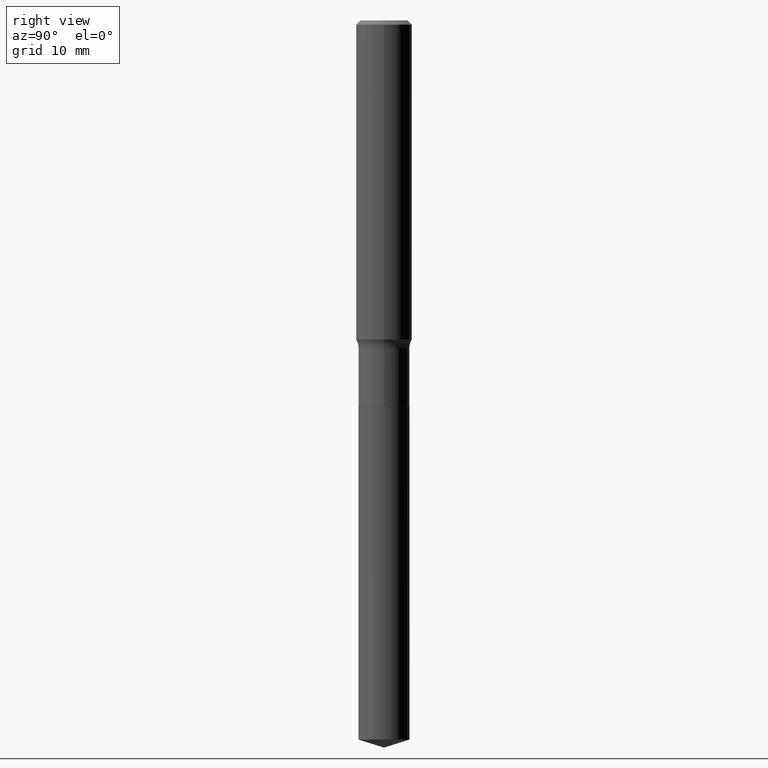
[diagram: clean part render]
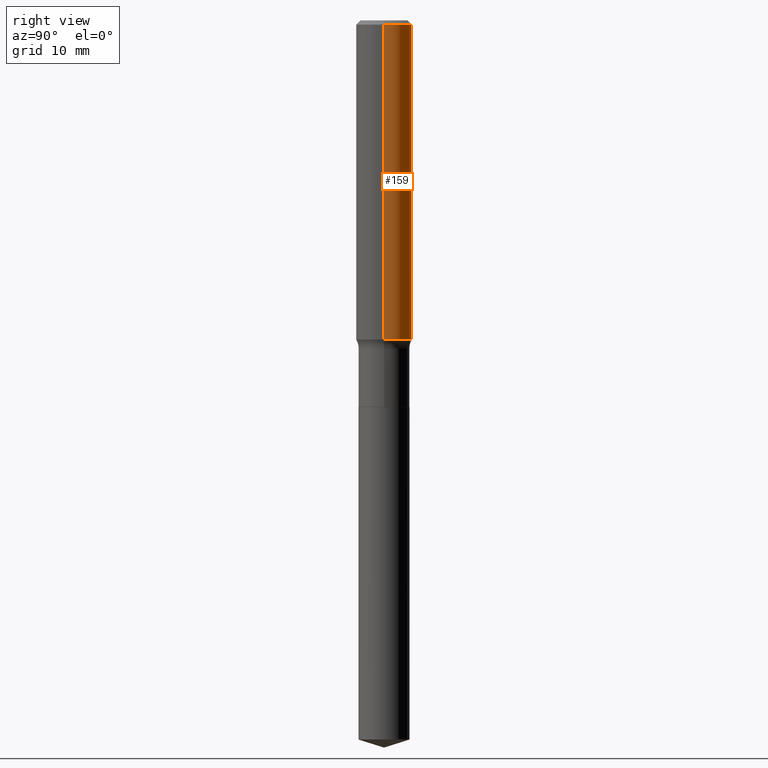
[diagram: same view with one face highlighted and labeled with its STEP entity id]
A machine part, right view. The second image highlights one B-rep face of the part: STEP entity #159.
In plain terms, the highlighted cylindrical surface (edge-blend (fillet) strip) has radius 3.175 mm, axis along (-0, 0, 1).
Its self-contained STEP definition (entity closure, byte-faithful):
#6 = DIRECTION ( 'NONE',  ( -2.445468806185136597E-29, 3.491481338843145583E-15, 1.000000000000000000 ) ) ;
#17 = VERTEX_POINT ( 'NONE', #433 ) ;
#25 = CARTESIAN_POINT ( 'NONE',  ( 0.1250000000000000000, -9.383356098140926809E-16, -0.01875000000000012768 ) ) ;
#29 = CARTESIAN_POINT ( 'NONE',  ( -0.1250000000000000000, -1.633740458479338781E-15, -0.01875000000000012768 ) ) ;
#48 = CARTESIAN_POINT ( 'NONE',  ( 4.585254011597162123E-31, -6.546527510330942834E-17, -0.01875000000000012768 ) ) ;
#58 = EDGE_CURVE ( 'NONE', #145, #446, #489, .T. ) ;
#66 = ORIENTED_EDGE ( 'NONE', *, *, #58, .F. ) ;
#80 = CIRCLE ( 'NONE', #475, 0.1250000000000000000 ) ;
#90 = VECTOR ( 'NONE', #258, 39.37007874015748143 ) ;
#97 = AXIS2_PLACEMENT_3D ( 'NONE', #299, #382, #451 ) ;
#98 = CARTESIAN_POINT ( 'NONE',  ( 3.486902385253749219E-29, -4.978372481255620459E-15, -1.425862548904567761 ) ) ;
#103 = CIRCLE ( 'NONE', #329, 0.1250000000000001665 ) ;
#110 = ORIENTED_EDGE ( 'NONE', *, *, #287, .T. ) ;
#134 = CARTESIAN_POINT ( 'NONE',  ( 0.1250000000000001943, -5.851242815966405376E-15, -1.425862548904567761 ) ) ;
#145 = VERTEX_POINT ( 'NONE', #134 ) ;
#156 = CARTESIAN_POINT ( 'NONE',  ( 0.1250000000000000833, -8.728703347107839305E-16, 6.095220969744923945E-30 ) ) ;
#159 = ADVANCED_FACE ( 'NONE', ( #343 ), #270, .T. ) ;
#196 = DIRECTION ( 'NONE',  ( 1.000000000000000000, -6.982962677686266711E-15, 0.000000000000000000 ) ) ;
#258 = DIRECTION ( 'NONE',  ( -2.445468806185136877E-29, 3.491481338843145188E-15, 1.000000000000000000 ) ) ;
#265 = DIRECTION ( 'NONE',  ( 1.000000000000000000, -6.982962677686269077E-15, 0.000000000000000000 ) ) ;
#270 = CYLINDRICAL_SURFACE ( 'NONE', #97, 0.1250000000000000833 ) ;
#284 = DIRECTION ( 'NONE',  ( -2.445468806185136597E-29, 3.491481338843145583E-15, 1.000000000000000000 ) ) ;
#287 = EDGE_CURVE ( 'NONE', #145, #17, #103, .T. ) ;
#299 = CARTESIAN_POINT ( 'NONE',  ( 0.000000000000000000, 0.000000000000000000, 0.000000000000000000 ) ) ;
#321 = VERTEX_POINT ( 'NONE', #29 ) ;
#329 = AXIS2_PLACEMENT_3D ( 'NONE', #98, #284, #265 ) ;
#330 = DIRECTION ( 'NONE',  ( -2.445468806185136877E-29, 3.491481338843145188E-15, 1.000000000000000000 ) ) ;
#343 = FACE_OUTER_BOUND ( 'NONE', #365, .T. ) ;
#364 = CARTESIAN_POINT ( 'NONE',  ( -0.1250000000000000833, 8.881784197001258240E-16, -6.148668862818636431E-30 ) ) ;
#365 = EDGE_LOOP ( 'NONE', ( #110, #406, #461, #66 ) ) ;
#378 = EDGE_CURVE ( 'NONE', #446, #321, #80, .T. ) ;
#382 = DIRECTION ( 'NONE',  ( -2.445468806185136597E-29, 3.491481338843145583E-15, 1.000000000000000000 ) ) ;
#393 = VECTOR ( 'NONE', #330, 39.37007874015748143 ) ;
#405 = LINE ( 'NONE', #364, #393 ) ;
#406 = ORIENTED_EDGE ( 'NONE', *, *, #484, .T. ) ;
#433 = CARTESIAN_POINT ( 'NONE',  ( -0.1250000000000001943, -4.090194061555494438E-15, -1.425862548904567761 ) ) ;
#446 = VERTEX_POINT ( 'NONE', #25 ) ;
#451 = DIRECTION ( 'NONE',  ( 1.000000000000000000, -6.982962677686266711E-15, 4.876176775795935793E-29 ) ) ;
#461 = ORIENTED_EDGE ( 'NONE', *, *, #378, .F. ) ;
#475 = AXIS2_PLACEMENT_3D ( 'NONE', #48, #6, #196 ) ;
#484 = EDGE_CURVE ( 'NONE', #17, #321, #405, .T. ) ;
#489 = LINE ( 'NONE', #156, #90 ) ;